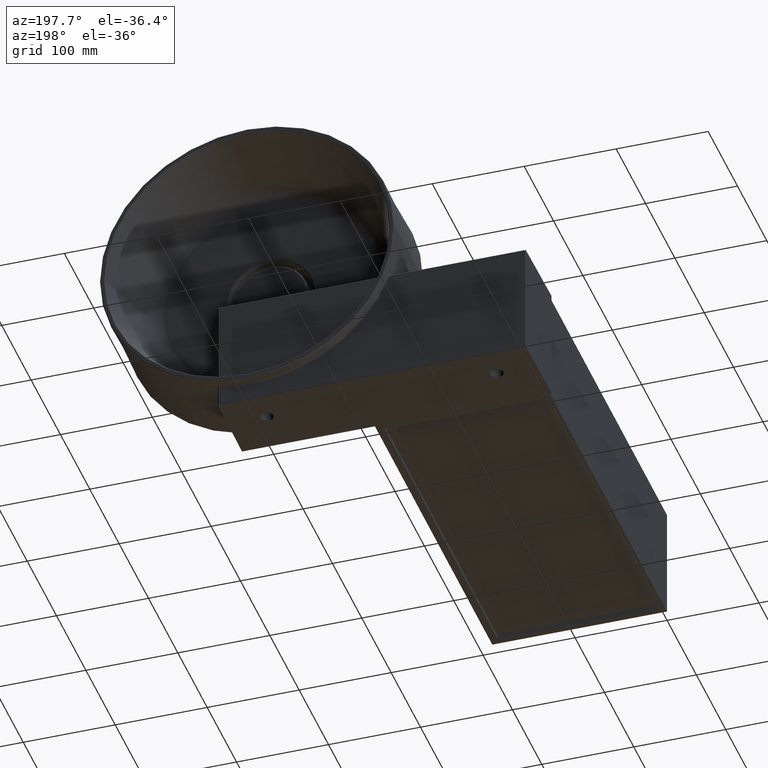
[diagram: clean part render]
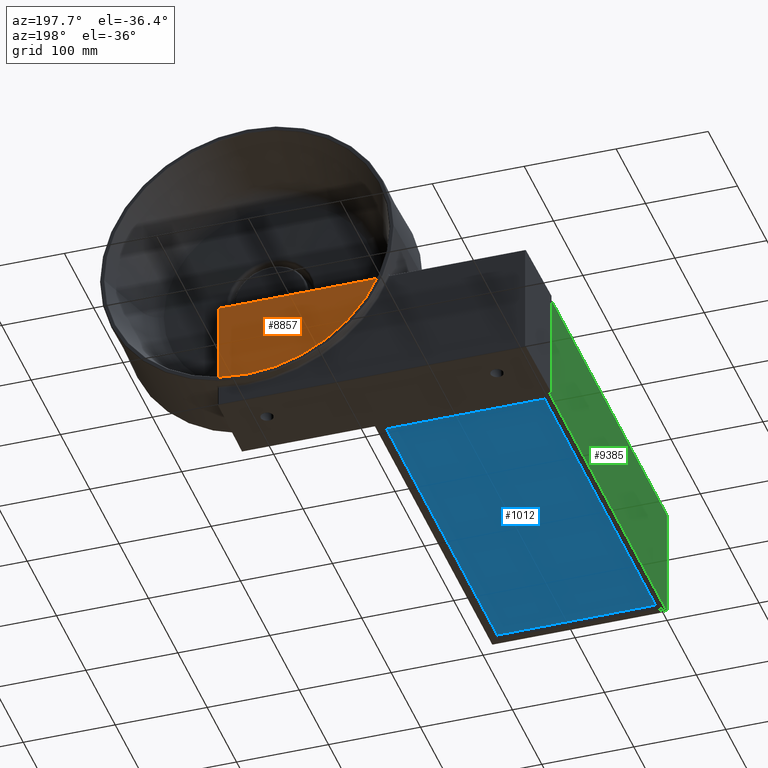
[diagram: same view with three faces highlighted in distinct colors, each labeled with its STEP entity id]
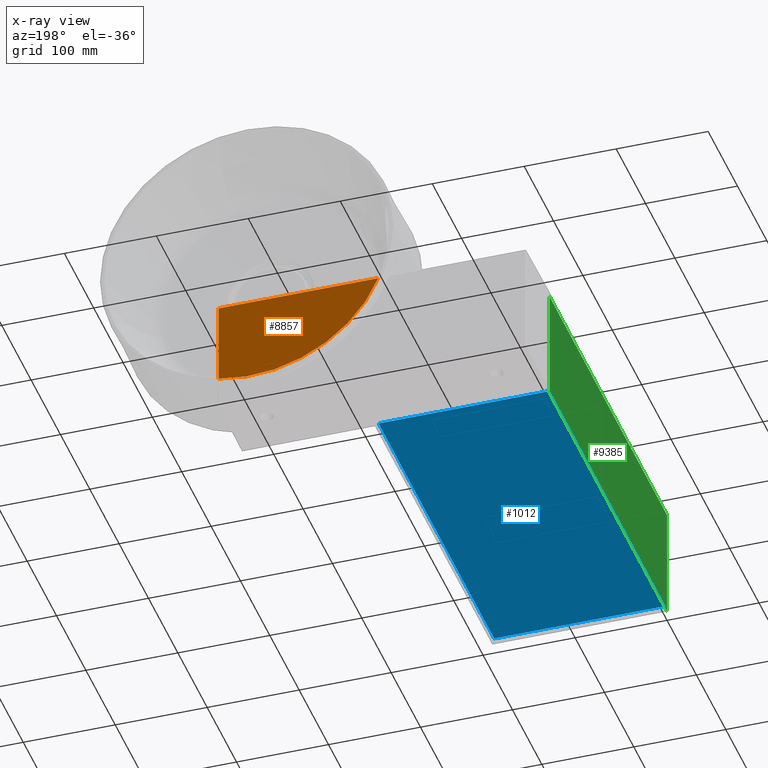
[diagram: x-ray of the same camera — body ghosted, the three highlighted faces saturated]
A machine part, auxiliary view with three faces highlighted in distinct colors.
The next image is the same camera in x-ray (body ghosted, the three faces saturated) — at least one of them is partly hidden behind the body in this view.
Their STEP definitions:

[orange] entity #8857 — the highlighted planar face has unit normal (0, 1, 0).
#184 = VERTEX_POINT ( 'NONE', #1281 ) ;
#1197 = VECTOR ( 'NONE', #2107, 1000.000000000000000 ) ;
#1281 = CARTESIAN_POINT ( 'NONE',  ( 159.1829015764731423, 484.9998999999999683, 0.008688789405020269641 ) ) ;
#1722 = VERTEX_POINT ( 'NONE', #2412 ) ;
#1863 = DIRECTION ( 'NONE',  ( 1.000000000000000000, -1.242786967863980845E-16, 0.0000000000000000000 ) ) ;
#1875 = DIRECTION ( 'NONE',  ( 1.242786967863980845E-16, 1.000000000000000000, 0.0000000000000000000 ) ) ;
#1889 = CARTESIAN_POINT ( 'NONE',  ( 298.7417837622144816, 484.9998999999999683, 55.99999999999999289 ) ) ;
#1902 = PLANE ( 'NONE',  #6505 ) ;
#1964 = FACE_OUTER_BOUND ( 'NONE', #10886, .T. ) ;
#2107 = DIRECTION ( 'NONE',  ( -0.0000000000000000000, -0.0000000000000000000, 1.000000000000000000 ) ) ;
#2158 = AXIS2_PLACEMENT_3D ( 'NONE', #7126, #7092, #7079 ) ;
#2162 = CARTESIAN_POINT ( 'NONE',  ( 332.7504725516195663, 484.9998999999999683, 55.99999999999999289 ) ) ;
#2412 = CARTESIAN_POINT ( 'NONE',  ( 332.7504725516195663, 484.9998999999999683, 0.008688789405020269641 ) ) ;
#3051 = ORIENTED_EDGE ( 'NONE', *, *, #3271, .F. ) ;
#3271 = EDGE_CURVE ( 'NONE', #184, #9904, #8638, .T. ) ;
#3814 = DIRECTION ( 'NONE',  ( -1.000000000000000000, 1.242786967863980845E-16, 1.925929944387235853E-34 ) ) ;
#3828 = CARTESIAN_POINT ( 'NONE',  ( 298.7417837622144816, 484.9998999999999683, 0.008688789405020269641 ) ) ;
#3842 = LINE ( 'NONE', #3828, #9304 ) ;
#4521 = ORIENTED_EDGE ( 'NONE', *, *, #9771, .F. ) ;
#4728 = LINE ( 'NONE', #2162, #1197 ) ;
#5398 = CARTESIAN_POINT ( 'NONE',  ( 332.7504725516195663, 484.9998999999999683, -90.47565536580037815 ) ) ;
#6505 = AXIS2_PLACEMENT_3D ( 'NONE', #1889, #1875, #1863 ) ;
#7079 = DIRECTION ( 'NONE',  ( 1.000000000000000000, 0.0000000000000000000, 0.0000000000000000000 ) ) ;
#7092 = DIRECTION ( 'NONE',  ( -1.242786967863980845E-16, -1.000000000000000000, -0.0000000000000000000 ) ) ;
#7126 = CARTESIAN_POINT ( 'NONE',  ( 298.7417837622144816, 484.9998999999999683, 55.99999999999999289 ) ) ;
#8504 = EDGE_CURVE ( 'NONE', #1722, #184, #3842, .T. ) ;
#8638 = CIRCLE ( 'NONE', #2158, 150.3719007262172624 ) ;
#8857 = ADVANCED_FACE ( 'NONE', ( #1964 ), #1902, .T. ) ;
#9304 = VECTOR ( 'NONE', #3814, 1000.000000000000000 ) ;
#9771 = EDGE_CURVE ( 'NONE', #9904, #1722, #4728, .T. ) ;
#9904 = VERTEX_POINT ( 'NONE', #5398 ) ;
#10886 = EDGE_LOOP ( 'NONE', ( #11220, #4521, #3051 ) ) ;
#11220 = ORIENTED_EDGE ( 'NONE', *, *, #8504, .F. ) ;

[blue] entity #1012 — the highlighted planar face has unit normal (0, 0, 1).
#113 = EDGE_CURVE ( 'NONE', #2327, #8509, #973, .T. ) ;
#460 = VECTOR ( 'NONE', #9885, 1000.000000000000000 ) ;
#785 = DIRECTION ( 'NONE',  ( -1.000000000000000000, 0.0000000000000000000, 0.0000000000000000000 ) ) ;
#840 = CARTESIAN_POINT ( 'NONE',  ( 3.000000000000000888, 396.9999000000000251, -119.0000000000000000 ) ) ;
#973 = LINE ( 'NONE', #840, #10239 ) ;
#1012 = ADVANCED_FACE ( 'NONE', ( #2074 ), #2045, .F. ) ;
#1275 = ORIENTED_EDGE ( 'NONE', *, *, #7267, .F. ) ;
#1287 = ORIENTED_EDGE ( 'NONE', *, *, #10763, .T. ) ;
#1379 = ORIENTED_EDGE ( 'NONE', *, *, #4163, .T. ) ;
#1405 = ORIENTED_EDGE ( 'NONE', *, *, #113, .F. ) ;
#1986 = DIRECTION ( 'NONE',  ( 1.000000000000000000, 0.0000000000000000000, -0.0000000000000000000 ) ) ;
#2014 = DIRECTION ( 'NONE',  ( 0.0000000000000000000, 0.0000000000000000000, 1.000000000000000000 ) ) ;
#2034 = CARTESIAN_POINT ( 'NONE',  ( 3.000000000000000888, 582.1737309315413995, -119.0000000000000000 ) ) ;
#2045 = PLANE ( 'NONE',  #4523 ) ;
#2074 = FACE_OUTER_BOUND ( 'NONE', #2433, .T. ) ;
#2187 = CARTESIAN_POINT ( 'NONE',  ( 187.0000000000000000, 3.000000000000001776, -119.0000000000000000 ) ) ;
#2327 = VERTEX_POINT ( 'NONE', #2333 ) ;
#2333 = CARTESIAN_POINT ( 'NONE',  ( 187.0000000000000000, 396.9999000000000251, -119.0000000000000000 ) ) ;
#2372 = DIRECTION ( 'NONE',  ( -0.0000000000000000000, -1.000000000000000000, -0.0000000000000000000 ) ) ;
#2387 = CARTESIAN_POINT ( 'NONE',  ( 3.000000000000000888, 582.1737309315413995, -119.0000000000000000 ) ) ;
#2425 = LINE ( 'NONE', #2387, #8940 ) ;
#2433 = EDGE_LOOP ( 'NONE', ( #1405, #1379, #1287, #1275 ) ) ;
#3799 = CARTESIAN_POINT ( 'NONE',  ( 3.000000000000000888, 396.9999000000000251, -119.0000000000000000 ) ) ;
#4146 = LINE ( 'NONE', #7693, #11024 ) ;
#4163 = EDGE_CURVE ( 'NONE', #2327, #8792, #9901, .T. ) ;
#4523 = AXIS2_PLACEMENT_3D ( 'NONE', #2034, #2014, #1986 ) ;
#4651 = CARTESIAN_POINT ( 'NONE',  ( 3.000000000000000888, 3.000000000000001776, -119.0000000000000000 ) ) ;
#4779 = VERTEX_POINT ( 'NONE', #4651 ) ;
#7267 = EDGE_CURVE ( 'NONE', #8509, #4779, #2425, .T. ) ;
#7693 = CARTESIAN_POINT ( 'NONE',  ( 3.000000000000000888, 3.000000000000001776, -119.0000000000000000 ) ) ;
#8509 = VERTEX_POINT ( 'NONE', #3799 ) ;
#8792 = VERTEX_POINT ( 'NONE', #2187 ) ;
#8940 = VECTOR ( 'NONE', #2372, 1000.000000000000000 ) ;
#9885 = DIRECTION ( 'NONE',  ( -0.0000000000000000000, -1.000000000000000000, -0.0000000000000000000 ) ) ;
#9891 = CARTESIAN_POINT ( 'NONE',  ( 187.0000000000000000, 582.1737309315413995, -119.0000000000000000 ) ) ;
#9901 = LINE ( 'NONE', #9891, #460 ) ;
#10239 = VECTOR ( 'NONE', #785, 1000.000000000000000 ) ;
#10763 = EDGE_CURVE ( 'NONE', #8792, #4779, #4146, .T. ) ;
#11024 = VECTOR ( 'NONE', #11107, 1000.000000000000000 ) ;
#11107 = DIRECTION ( 'NONE',  ( -1.000000000000000000, -0.0000000000000000000, -0.0000000000000000000 ) ) ;

[green] entity #9385 — the highlighted planar face has unit normal (1, 0, 0).
#54 = VECTOR ( 'NONE', #3424, 1000.000000000000000 ) ;
#605 = AXIS2_PLACEMENT_3D ( 'NONE', #1524, #1461, #767 ) ;
#767 = DIRECTION ( 'NONE',  ( 0.0000000000000000000, 0.0000000000000000000, -1.000000000000000000 ) ) ;
#1461 = DIRECTION ( 'NONE',  ( 1.000000000000000000, 0.0000000000000000000, 0.0000000000000000000 ) ) ;
#1524 = CARTESIAN_POINT ( 'NONE',  ( 0.0000000000000000000, 524.2577965360725329, -124.0000000000000000 ) ) ;
#1644 = PLANE ( 'NONE',  #605 ) ;
#2437 = FACE_OUTER_BOUND ( 'NONE', #7380, .T. ) ;
#2652 = VERTEX_POINT ( 'NONE', #9993 ) ;
#3424 = DIRECTION ( 'NONE',  ( -0.0000000000000000000, -1.000000000000000000, -0.0000000000000000000 ) ) ;
#4321 = CARTESIAN_POINT ( 'NONE',  ( 0.0000000000000000000, 0.0000000000000000000, 0.0000000000000000000 ) ) ;
#4335 = VERTEX_POINT ( 'NONE', #8159 ) ;
#4382 = CARTESIAN_POINT ( 'NONE',  ( 0.0000000000000000000, 400.0000000000000000, -124.0000000000000000 ) ) ;
#4832 = VERTEX_POINT ( 'NONE', #4382 ) ;
#4940 = ORIENTED_EDGE ( 'NONE', *, *, #10404, .T. ) ;
#5544 = EDGE_CURVE ( 'NONE', #4832, #4335, #10652, .T. ) ;
#5997 = EDGE_CURVE ( 'NONE', #2652, #7225, #7976, .T. ) ;
#6611 = DIRECTION ( 'NONE',  ( -0.0000000000000000000, -1.000000000000000000, -0.0000000000000000000 ) ) ;
#6624 = CARTESIAN_POINT ( 'NONE',  ( 0.0000000000000000000, 524.2577965360725329, 0.0000000000000000000 ) ) ;
#7225 = VERTEX_POINT ( 'NONE', #4321 ) ;
#7244 = VECTOR ( 'NONE', #6611, 1000.000000000000000 ) ;
#7373 = VECTOR ( 'NONE', #7962, 1000.000000000000000 ) ;
#7380 = EDGE_LOOP ( 'NONE', ( #9751, #4940, #9541, #9491 ) ) ;
#7828 = LINE ( 'NONE', #11227, #54 ) ;
#7962 = DIRECTION ( 'NONE',  ( 0.0000000000000000000, 0.0000000000000000000, 1.000000000000000000 ) ) ;
#7964 = CARTESIAN_POINT ( 'NONE',  ( 0.0000000000000000000, 0.0000000000000000000, -124.0000000000000000 ) ) ;
#7976 = LINE ( 'NONE', #7964, #7373 ) ;
#8038 = EDGE_CURVE ( 'NONE', #4335, #7225, #11027, .T. ) ;
#8159 = CARTESIAN_POINT ( 'NONE',  ( 0.0000000000000000000, 400.0000000000000000, 0.0000000000000000000 ) ) ;
#8883 = VECTOR ( 'NONE', #10624, 1000.000000000000000 ) ;
#9385 = ADVANCED_FACE ( 'NONE', ( #2437 ), #1644, .F. ) ;
#9491 = ORIENTED_EDGE ( 'NONE', *, *, #8038, .F. ) ;
#9541 = ORIENTED_EDGE ( 'NONE', *, *, #5997, .T. ) ;
#9751 = ORIENTED_EDGE ( 'NONE', *, *, #5544, .F. ) ;
#9993 = CARTESIAN_POINT ( 'NONE',  ( 0.0000000000000000000, 0.0000000000000000000, -124.0000000000000000 ) ) ;
#10404 = EDGE_CURVE ( 'NONE', #4832, #2652, #7828, .T. ) ;
#10624 = DIRECTION ( 'NONE',  ( 0.0000000000000000000, 0.0000000000000000000, 1.000000000000000000 ) ) ;
#10638 = CARTESIAN_POINT ( 'NONE',  ( 0.0000000000000000000, 400.0000000000000000, -124.0000000000000000 ) ) ;
#10652 = LINE ( 'NONE', #10638, #8883 ) ;
#11027 = LINE ( 'NONE', #6624, #7244 ) ;
#11227 = CARTESIAN_POINT ( 'NONE',  ( 0.0000000000000000000, 524.2577965360725329, -124.0000000000000000 ) ) ;